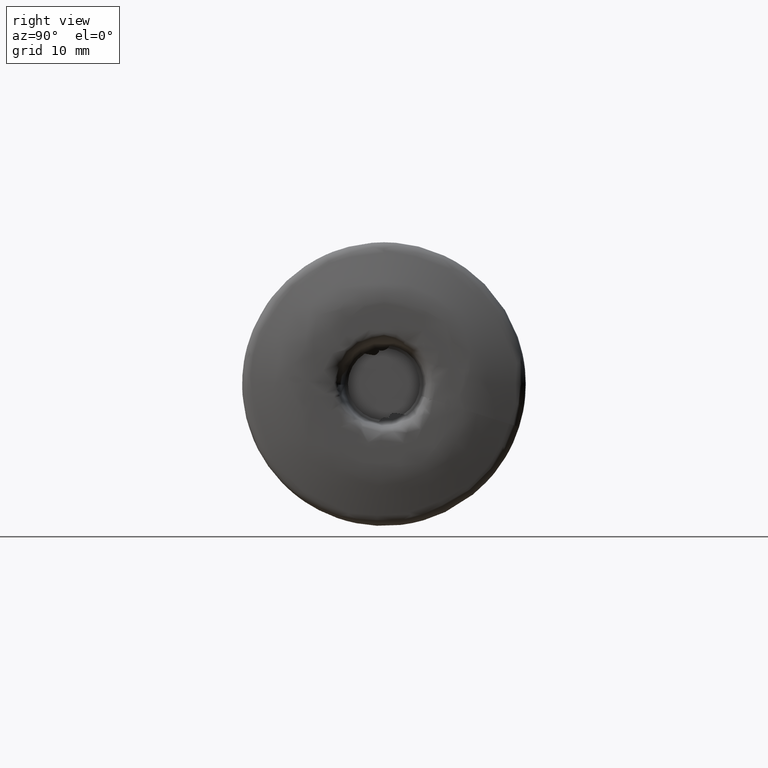
[diagram: clean part render]
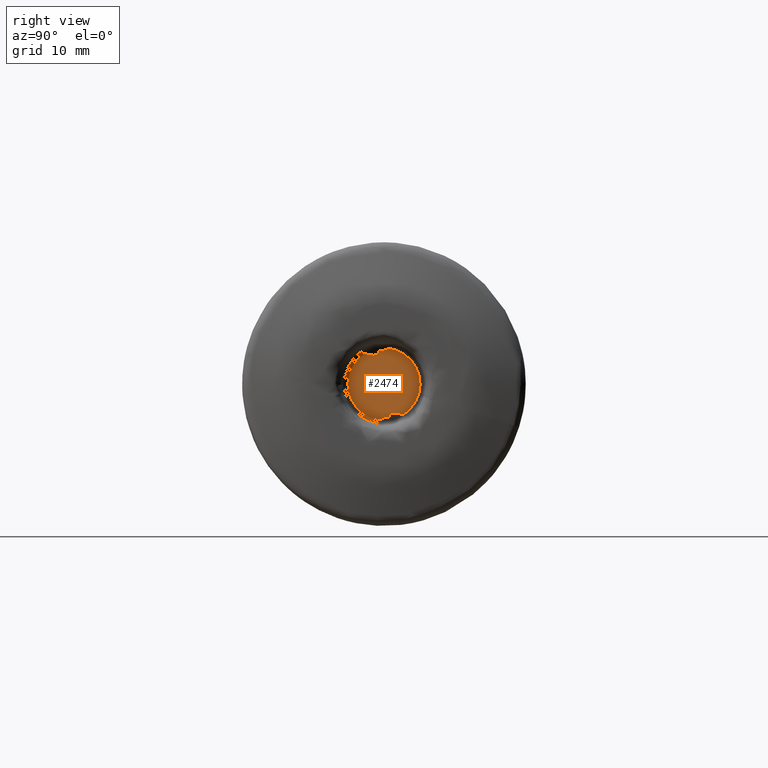
[diagram: same view with one face highlighted and labeled with its STEP entity id]
A machine part, right view. The second image highlights one B-rep face of the part: STEP entity #2474.
In plain terms, the highlighted planar face has unit normal (1, 0, -0).
Its self-contained STEP definition (entity closure, byte-faithful):
#11 = ORIENTED_EDGE ( 'NONE', *, *, #3375, .T. ) ;
#47 = ORIENTED_EDGE ( 'NONE', *, *, #1262, .T. ) ;
#68 = CARTESIAN_POINT ( 'NONE',  ( -1.250000000000000700, 0.4138124341112139300, -2.003401796008390000E-014 ) ) ;
#75 = VECTOR ( 'NONE', #3967, 1000.000000000000200 ) ;
#96 = LINE ( 'NONE', #68, #310 ) ;
#108 = CARTESIAN_POINT ( 'NONE',  ( -1.250000000000000700, -0.2133240544949996400, 2.951351694033265400 ) ) ;
#180 = CARTESIAN_POINT ( 'NONE',  ( -1.250000000000000700, 3.215857674307564600, 2.915051625796939700 ) ) ;
#195 = DIRECTION ( 'NONE',  ( 0.0000000000000000000, 0.9999439768675593100, -0.01058504257383586400 ) ) ;
#208 = VERTEX_POINT ( 'NONE', #2499 ) ;
#270 = CARTESIAN_POINT ( 'NONE',  ( -1.250000000000001100, -0.1871766761163668500, -3.024612374286495000 ) ) ;
#310 = VECTOR ( 'NONE', #2241, 1000.000000000000000 ) ;
#344 = CARTESIAN_POINT ( 'NONE',  ( -1.250000000000000700, -1.002069487561204400, 2.558634269027237000 ) ) ;
#383 = CARTESIAN_POINT ( 'NONE',  ( -1.250000000000001300, 0.1871766761163676200, 3.024612374286495900 ) ) ;
#415 = PLANE ( 'NONE',  #1492 ) ;
#484 = EDGE_CURVE ( 'NONE', #1547, #514, #725, .T. ) ;
#491 = CARTESIAN_POINT ( 'NONE',  ( -1.250000000000000900, 0.4138124341112336400, -2.711446416314017500 ) ) ;
#505 = VERTEX_POINT ( 'NONE', #2569 ) ;
#514 = VERTEX_POINT ( 'NONE', #2902 ) ;
#549 = VERTEX_POINT ( 'NONE', #108 ) ;
#607 = VECTOR ( 'NONE', #1542, 1000.000000000000200 ) ;
#611 = ORIENTED_EDGE ( 'NONE', *, *, #1186, .T. ) ;
#613 = CARTESIAN_POINT ( 'NONE',  ( -1.250000000000000000, 1.703868552952494800, -2.690921209225489700 ) ) ;
#670 = VERTEX_POINT ( 'NONE', #2019 ) ;
#675 = DIRECTION ( 'NONE',  ( 0.0000000000000000000, 0.0000000000000000000, -1.000000000000000000 ) ) ;
#686 = ORIENTED_EDGE ( 'NONE', *, *, #3162, .F. ) ;
#687 = CARTESIAN_POINT ( 'NONE',  ( -1.250000000000000000, 0.3379588317412570200, 3.167018918170222200 ) ) ;
#702 = CARTESIAN_POINT ( 'NONE',  ( -1.250000000000000700, -0.2133240544949996400, 2.951351694033265400 ) ) ;
#725 = LINE ( 'NONE', #1629, #1736 ) ;
#781 = EDGE_CURVE ( 'NONE', #3622, #549, #2517, .T. ) ;
#838 = VERTEX_POINT ( 'NONE', #2361 ) ;
#887 = EDGE_CURVE ( 'NONE', #1428, #505, #2258, .T. ) ;
#895 = CARTESIAN_POINT ( 'NONE',  ( -1.250000000000000000, -0.3379588317412570200, -3.167018918170222200 ) ) ;
#1014 = LINE ( 'NONE', #1875, #1842 ) ;
#1025 = CARTESIAN_POINT ( 'NONE',  ( -1.250000000000000700, -0.4138124341112335800, 2.711446416314017500 ) ) ;
#1080 = EDGE_LOOP ( 'NONE', ( #2271, #11, #3983, #3390, #47, #686, #611, #2193, #1265, #1807, #1484, #1114 ) ) ;
#1105 = CARTESIAN_POINT ( 'NONE',  ( -1.250000000000000700, 1.002069487561205100, -2.558634269027237500 ) ) ;
#1114 = ORIENTED_EDGE ( 'NONE', *, *, #887, .F. ) ;
#1186 = EDGE_CURVE ( 'NONE', #2034, #1813, #1496, .T. ) ;
#1188 = FACE_OUTER_BOUND ( 'NONE', #1080, .T. ) ;
#1251 = DIRECTION ( 'NONE',  ( 0.0000000000000000000, 0.0000000000000000000, -1.000000000000000000 ) ) ;
#1262 = EDGE_CURVE ( 'NONE', #670, #838, #2125, .T. ) ;
#1265 = ORIENTED_EDGE ( 'NONE', *, *, #484, .F. ) ;
#1344 = CARTESIAN_POINT ( 'NONE',  ( -1.250000000000000700, 3.185000000000000100, 0.0000000000000000000 ) ) ;
#1348 =( BOUNDED_CURVE ( )  B_SPLINE_CURVE ( 3, ( #687, #383, #2550, #702 ),
 .UNSPECIFIED., .F., .T. ) 
 B_SPLINE_CURVE_WITH_KNOTS ( ( 4, 4 ),
 ( 5.961388459492304100, 6.719325931190621900 ),
 .UNSPECIFIED. ) 
 CURVE ( )  GEOMETRIC_REPRESENTATION_ITEM ( )  RATIONAL_B_SPLINE_CURVE ( ( 1.000000000000000000, 0.9526977724477212500, 0.9526977724477212500, 1.000000000000000000 ) ) 
 REPRESENTATION_ITEM ( '' )  );
#1428 = VERTEX_POINT ( 'NONE', #613 ) ;
#1482 = EDGE_CURVE ( 'NONE', #1428, #2738, #3471, .T. ) ;
#1484 = ORIENTED_EDGE ( 'NONE', *, *, #3618, .T. ) ;
#1492 = AXIS2_PLACEMENT_3D ( 'NONE', #1344, #1655, #3843 ) ;
#1496 = CIRCLE ( 'NONE', #3481, 3.185000000000000100 ) ;
#1513 = CARTESIAN_POINT ( 'NONE',  ( -1.250000000000000700, 0.2133240544950022500, -2.951351694033265400 ) ) ;
#1542 = DIRECTION ( 'NONE',  ( 0.0000000000000000000, 0.9826942877045427000, -0.1852348156067357100 ) ) ;
#1547 = VERTEX_POINT ( 'NONE', #2893 ) ;
#1629 = CARTESIAN_POINT ( 'NONE',  ( -1.250000000000000700, 3.153428610977968600, -2.982474569536143000 ) ) ;
#1646 =( BOUNDED_CURVE ( )  B_SPLINE_CURVE ( 3, ( #895, #270, #3393, #1513 ),
 .UNSPECIFIED., .F., .F. ) 
 B_SPLINE_CURVE_WITH_KNOTS ( ( 4, 4 ),
 ( 5.961388459492304100, 6.719325931190625500 ),
 .UNSPECIFIED. ) 
 CURVE ( )  GEOMETRIC_REPRESENTATION_ITEM ( )  RATIONAL_B_SPLINE_CURVE ( ( 1.000000000000000000, 0.9526977724477208000, 0.9526977724477208000, 1.000000000000000000 ) ) 
 REPRESENTATION_ITEM ( '' )  );
#1655 = DIRECTION ( 'NONE',  ( 1.000000000000000000, 0.0000000000000000000, -0.0000000000000000000 ) ) ;
#1728 = EDGE_CURVE ( 'NONE', #1547, #208, #96, .T. ) ;
#1736 = VECTOR ( 'NONE', #3507, 1000.000000000000100 ) ;
#1807 = ORIENTED_EDGE ( 'NONE', *, *, #1728, .T. ) ;
#1813 = VERTEX_POINT ( 'NONE', #2905 ) ;
#1842 = VECTOR ( 'NONE', #3157, 1000.000000000000000 ) ;
#1875 = CARTESIAN_POINT ( 'NONE',  ( -1.250000000000000700, -0.4138124341112139300, -2.601724756109518400E-014 ) ) ;
#1916 = DIRECTION ( 'NONE',  ( 1.000000000000000000, -0.0000000000000000000, -0.0000000000000000000 ) ) ;
#1969 = CARTESIAN_POINT ( 'NONE',  ( -1.250000000000000700, 0.4138124341112358600, -3.050448451204782700 ) ) ;
#2019 = CARTESIAN_POINT ( 'NONE',  ( -1.250000000000000700, -0.4138124341112358600, 3.050448451204782700 ) ) ;
#2034 = VERTEX_POINT ( 'NONE', #3592 ) ;
#2095 = CARTESIAN_POINT ( 'NONE',  ( -1.250000000000000700, 2.644353289219142100, -2.868199655720011300 ) ) ;
#2125 =( BOUNDED_CURVE ( )  B_SPLINE_CURVE ( 3, ( #3164, #1025, #2513, #344 ),
 .UNSPECIFIED., .F., .F. ) 
 B_SPLINE_CURVE_WITH_KNOTS ( ( 4, 4 ),
 ( 2.006936950805931400, 3.752266202800259400 ),
 .UNSPECIFIED. ) 
 CURVE ( )  GEOMETRIC_REPRESENTATION_ITEM ( )  RATIONAL_B_SPLINE_CURVE ( ( 1.000000000000000000, 0.7618584064576932000, 0.7618584064576932000, 1.000000000000000000 ) ) 
 REPRESENTATION_ITEM ( '' )  );
#2146 = LINE ( 'NONE', #2163, #607 ) ;
#2163 = CARTESIAN_POINT ( 'NONE',  ( -1.250000000000000700, 3.507079672645931000, 1.708673682418674800 ) ) ;
#2193 = ORIENTED_EDGE ( 'NONE', *, *, #3083, .T. ) ;
#2222 = EDGE_CURVE ( 'NONE', #3622, #670, #1014, .T. ) ;
#2229 = CARTESIAN_POINT ( 'NONE',  ( -1.250000000000000000, 0.0000000000000000000, 0.0000000000000000000 ) ) ;
#2241 = DIRECTION ( 'NONE',  ( 0.0000000000000000000, 7.229398041001426400E-015, -1.000000000000000000 ) ) ;
#2258 = LINE ( 'NONE', #2095, #75 ) ;
#2271 = ORIENTED_EDGE ( 'NONE', *, *, #1482, .T. ) ;
#2341 = CARTESIAN_POINT ( 'NONE',  ( -1.250000000000000900, -0.4138124341112353100, 2.953473990964785100 ) ) ;
#2361 = CARTESIAN_POINT ( 'NONE',  ( -1.250000000000000700, -1.002069487561204400, 2.558634269027237000 ) ) ;
#2474 = ADVANCED_FACE ( 'NONE', ( #1188 ), #415, .T. ) ;
#2499 = CARTESIAN_POINT ( 'NONE',  ( -1.250000000000000700, 0.4138124341112358600, -3.050448451204782700 ) ) ;
#2513 = CARTESIAN_POINT ( 'NONE',  ( -1.250000000000000700, -0.6711905542727406600, 2.496264619622834000 ) ) ;
#2517 = LINE ( 'NONE', #180, #3127 ) ;
#2550 = CARTESIAN_POINT ( 'NONE',  ( -1.250000000000001300, -0.005708168787409417600, 2.949153947919424600 ) ) ;
#2551 = AXIS2_PLACEMENT_3D ( 'NONE', #2229, #1916, #1251 ) ;
#2569 = CARTESIAN_POINT ( 'NONE',  ( -1.250000000000000700, 1.002069487561205100, -2.558634269027237500 ) ) ;
#2738 = VERTEX_POINT ( 'NONE', #3277 ) ;
#2856 = DIRECTION ( 'NONE',  ( 1.000000000000000000, -0.0000000000000000000, -0.0000000000000000000 ) ) ;
#2893 = CARTESIAN_POINT ( 'NONE',  ( -1.250000000000000900, 0.4138124341112353100, -2.953473990964785100 ) ) ;
#2902 = CARTESIAN_POINT ( 'NONE',  ( -1.250000000000000700, 0.2133240544950022500, -2.951351694033265400 ) ) ;
#2905 = CARTESIAN_POINT ( 'NONE',  ( -1.250000000000000000, -0.3379588317412570200, -3.167018918170222200 ) ) ;
#2995 = CARTESIAN_POINT ( 'NONE',  ( -1.250000000000000900, 0.6711905542727413200, -2.496264619622834000 ) ) ;
#3083 = EDGE_CURVE ( 'NONE', #1813, #514, #1646, .T. ) ;
#3127 = VECTOR ( 'NONE', #195, 1000.000000000000100 ) ;
#3157 = DIRECTION ( 'NONE',  ( 0.0000000000000000000, -7.229398041001426400E-015, 1.000000000000000000 ) ) ;
#3162 = EDGE_CURVE ( 'NONE', #2034, #838, #2146, .T. ) ;
#3164 = CARTESIAN_POINT ( 'NONE',  ( -1.250000000000000700, -0.4138124341112358600, 3.050448451204782700 ) ) ;
#3231 =( BOUNDED_CURVE ( )  B_SPLINE_CURVE ( 3, ( #1969, #491, #2995, #1105 ),
 .UNSPECIFIED., .F., .T. ) 
 B_SPLINE_CURVE_WITH_KNOTS ( ( 4, 4 ),
 ( 2.006936950805931400, 3.752266202800260700 ),
 .UNSPECIFIED. ) 
 CURVE ( )  GEOMETRIC_REPRESENTATION_ITEM ( )  RATIONAL_B_SPLINE_CURVE ( ( 1.000000000000000000, 0.7618584064576929800, 0.7618584064576929800, 1.000000000000000000 ) ) 
 REPRESENTATION_ITEM ( '' )  );
#3277 = CARTESIAN_POINT ( 'NONE',  ( -1.250000000000000000, 0.3379588317412570200, 3.167018918170222200 ) ) ;
#3375 = EDGE_CURVE ( 'NONE', #2738, #549, #1348, .T. ) ;
#3390 = ORIENTED_EDGE ( 'NONE', *, *, #2222, .T. ) ;
#3393 = CARTESIAN_POINT ( 'NONE',  ( -1.250000000000001100, 0.005708168787411259900, -2.949153947919423800 ) ) ;
#3471 = CIRCLE ( 'NONE', #2551, 3.185000000000000100 ) ;
#3479 = CARTESIAN_POINT ( 'NONE',  ( -1.250000000000000000, 0.0000000000000000000, 0.0000000000000000000 ) ) ;
#3481 = AXIS2_PLACEMENT_3D ( 'NONE', #3479, #2856, #675 ) ;
#3507 = DIRECTION ( 'NONE',  ( 0.0000000000000000000, -0.9999439768675593100, 0.01058504257383586400 ) ) ;
#3592 = CARTESIAN_POINT ( 'NONE',  ( -1.250000000000000000, -1.703868552952495300, 2.690921209225489300 ) ) ;
#3618 = EDGE_CURVE ( 'NONE', #208, #505, #3231, .T. ) ;
#3622 = VERTEX_POINT ( 'NONE', #2341 ) ;
#3843 = DIRECTION ( 'NONE',  ( -0.0000000000000000000, 0.0000000000000000000, -1.000000000000000000 ) ) ;
#3967 = DIRECTION ( 'NONE',  ( 0.0000000000000000000, -0.9826942877045427000, 0.1852348156067357100 ) ) ;
#3983 = ORIENTED_EDGE ( 'NONE', *, *, #781, .F. ) ;